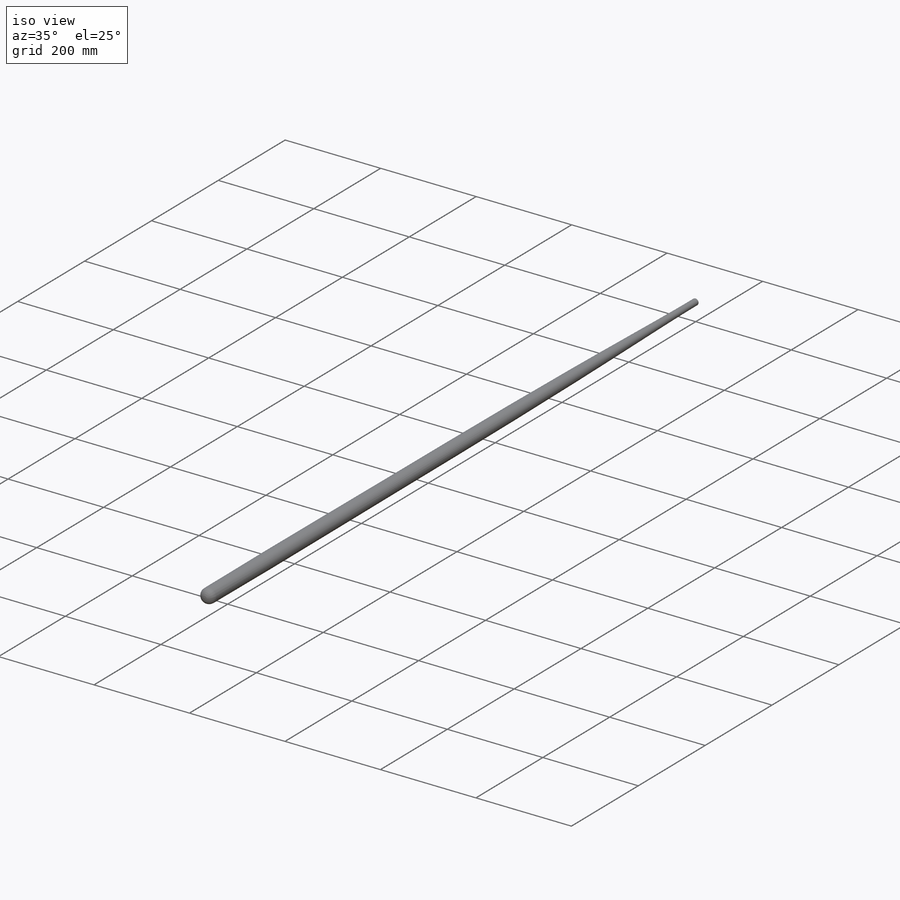
[diagram: iso view]
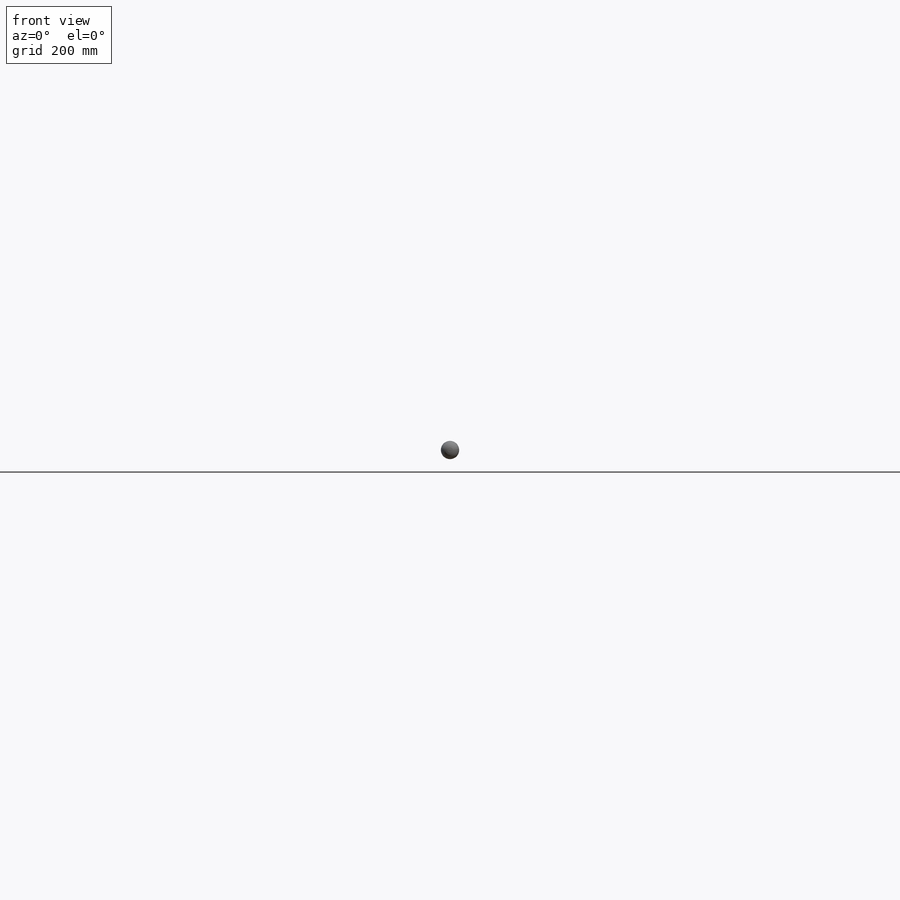
[diagram: front view]
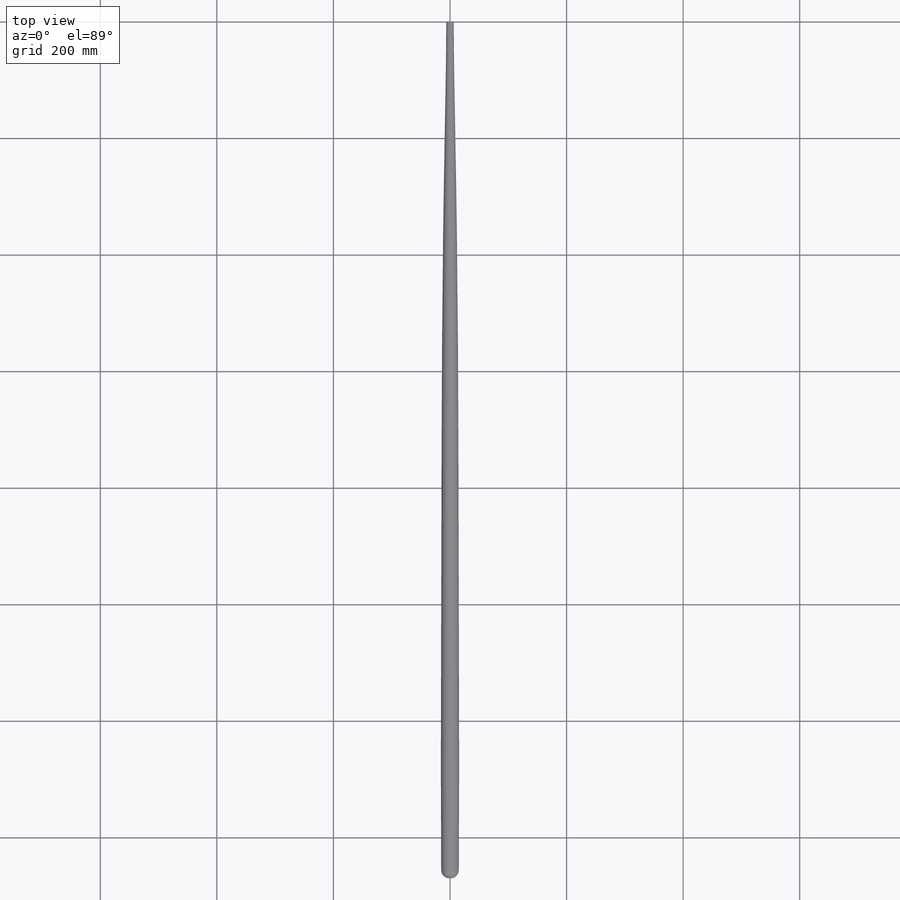
[diagram: top view]
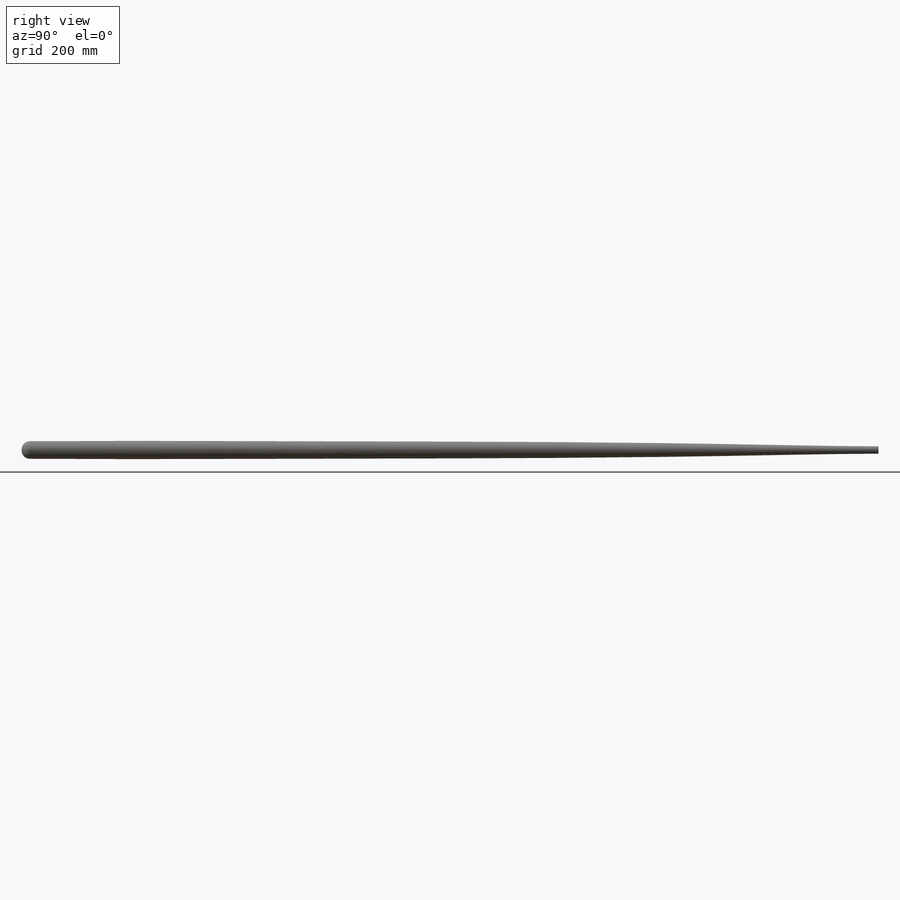
[diagram: right view]
SOLIDWORKS PART (.sldprt)
format: sldprt  version: not decoded by parser v0  size: 206,848 bytes
history: native  units: mm
features: material x6, sketch x4, fillet x2, plane x1 (+9 scaffold rows collapsed)
feature tree (22):
  scaffold x9  (default folders/planes/origin — collapsed)
  material  "Materiał <nieokreślony>"
  material  "Płaszczyzna górna"
  material  "Płaszczyzna prawa"
  material  "Płaszczyzna1"
  material  "Płaszczyzna2"
  material  "Płaszczyzna3"
  plane  "Płaszczyzna przednia"
  sketch  "Szkic1"  dims[D1=13.0mm]
  sketch  "Szkic2"  dims[D1=13.0mm]
  sketch  "Szkic3"  dims[D1=30.0mm]
  sketch  "Szkic4"  dims[D1=30.0mm]
  fillet  "Zaokrąglenie1"  Radius=14mm
  fillet  "Zaokrąglenie2"  Radius=1mm
decode coverage: 6 of 6 modeling features carry decoded parameters
note: suppression state not decoded; provenance and decode notes live in map.json
